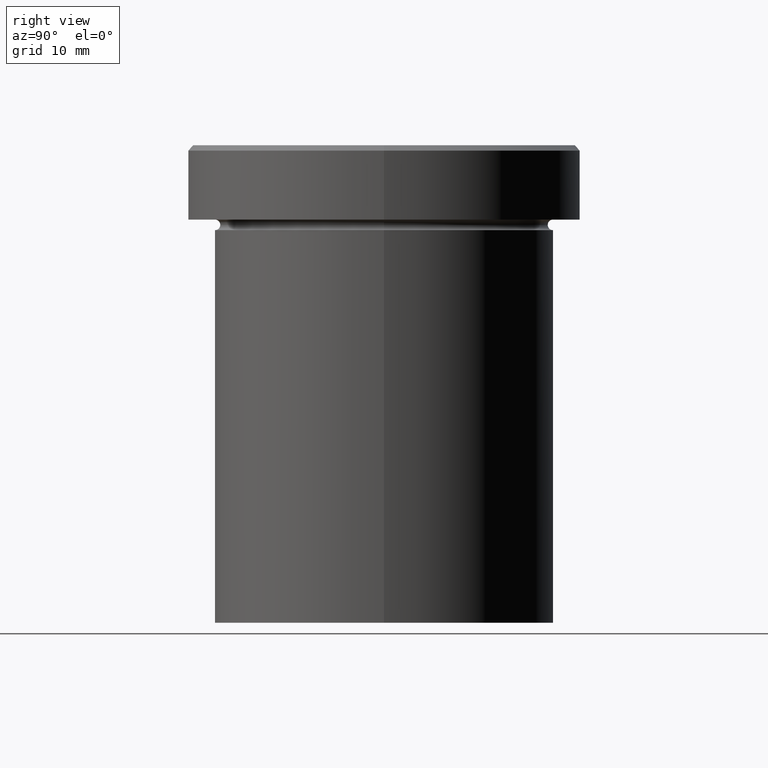
[diagram: clean part render]
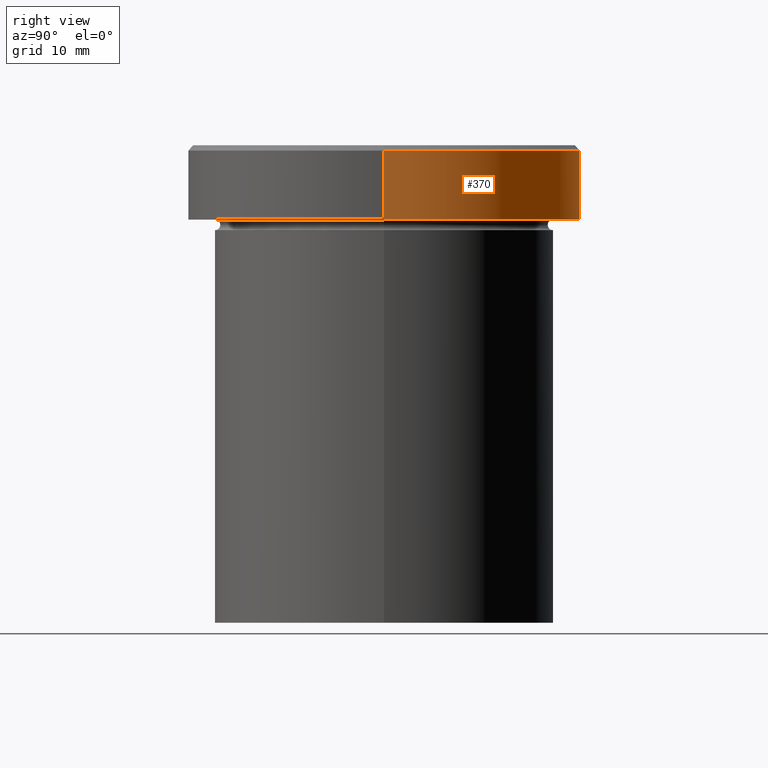
[diagram: same view with one face highlighted and labeled with its STEP entity id]
A machine part, right view. The second image highlights one B-rep face of the part: STEP entity #370.
In plain terms, the highlighted cylindrical surface (partial cylindrical patch) has radius 18.5 mm, axis along (-0, -0, 1).
Its self-contained STEP definition (entity closure, byte-faithful):
#9 = DIRECTION ( 'NONE',  ( 1.000000000000000000, 0.000000000000000000, 0.000000000000000000 ) ) ;
#11 = AXIS2_PLACEMENT_3D ( 'NONE', #155, #395, #126 ) ;
#18 = CYLINDRICAL_SURFACE ( 'NONE', #304, 18.50000000000000000 ) ;
#26 = VERTEX_POINT ( 'NONE', #151 ) ;
#31 = EDGE_LOOP ( 'NONE', ( #187, #266, #70, #334 ) ) ;
#39 = CARTESIAN_POINT ( 'NONE',  ( 0.000000000000000000, 0.000000000000000000, -6.999999999999998224 ) ) ;
#44 = LINE ( 'NONE', #228, #50 ) ;
#49 = FACE_OUTER_BOUND ( 'NONE', #31, .T. ) ;
#50 = VECTOR ( 'NONE', #108, 1000.000000000000000 ) ;
#55 = EDGE_CURVE ( 'NONE', #135, #176, #185, .T. ) ;
#61 = VECTOR ( 'NONE', #87, 1000.000000000000000 ) ;
#70 = ORIENTED_EDGE ( 'NONE', *, *, #55, .T. ) ;
#82 = EDGE_CURVE ( 'NONE', #26, #135, #121, .T. ) ;
#87 = DIRECTION ( 'NONE',  ( -0.000000000000000000, -0.000000000000000000, 1.000000000000000000 ) ) ;
#108 = DIRECTION ( 'NONE',  ( -0.000000000000000000, -0.000000000000000000, 1.000000000000000000 ) ) ;
#121 = LINE ( 'NONE', #360, #61 ) ;
#126 = DIRECTION ( 'NONE',  ( 1.000000000000000000, 0.000000000000000000, 0.000000000000000000 ) ) ;
#135 = VERTEX_POINT ( 'NONE', #318 ) ;
#151 = CARTESIAN_POINT ( 'NONE',  ( -18.50000000000000000, 2.265596578422603396E-15, -6.999999999999998224 ) ) ;
#155 = CARTESIAN_POINT ( 'NONE',  ( 0.000000000000000000, 0.000000000000000000, -0.4999999999999865663 ) ) ;
#162 = DIRECTION ( 'NONE',  ( 1.000000000000000000, 0.000000000000000000, 0.000000000000000000 ) ) ;
#176 = VERTEX_POINT ( 'NONE', #216 ) ;
#180 = CIRCLE ( 'NONE', #319, 18.50000000000000000 ) ;
#185 = CIRCLE ( 'NONE', #11, 18.50000000000000000 ) ;
#187 = ORIENTED_EDGE ( 'NONE', *, *, #240, .T. ) ;
#196 = CARTESIAN_POINT ( 'NONE',  ( 18.50000000000000000, 0.000000000000000000, -6.999999999999998224 ) ) ;
#200 = DIRECTION ( 'NONE',  ( -0.000000000000000000, -0.000000000000000000, 1.000000000000000000 ) ) ;
#216 = CARTESIAN_POINT ( 'NONE',  ( 18.50000000000000000, 0.000000000000000000, -0.4999999999999865663 ) ) ;
#228 = CARTESIAN_POINT ( 'NONE',  ( 18.50000000000000000, 0.000000000000000000, 0.000000000000000000 ) ) ;
#240 = EDGE_CURVE ( 'NONE', #257, #26, #180, .T. ) ;
#257 = VERTEX_POINT ( 'NONE', #196 ) ;
#263 = EDGE_CURVE ( 'NONE', #257, #176, #44, .T. ) ;
#266 = ORIENTED_EDGE ( 'NONE', *, *, #82, .T. ) ;
#280 = DIRECTION ( 'NONE',  ( -0.000000000000000000, -0.000000000000000000, 1.000000000000000000 ) ) ;
#304 = AXIS2_PLACEMENT_3D ( 'NONE', #347, #200, #9 ) ;
#318 = CARTESIAN_POINT ( 'NONE',  ( -18.50000000000000000, 2.265596578422603396E-15, -0.4999999999999865663 ) ) ;
#319 = AXIS2_PLACEMENT_3D ( 'NONE', #39, #280, #162 ) ;
#334 = ORIENTED_EDGE ( 'NONE', *, *, #263, .F. ) ;
#347 = CARTESIAN_POINT ( 'NONE',  ( 0.000000000000000000, 0.000000000000000000, 0.000000000000000000 ) ) ;
#360 = CARTESIAN_POINT ( 'NONE',  ( -18.50000000000000000, 2.265596578422603396E-15, 0.000000000000000000 ) ) ;
#370 = ADVANCED_FACE ( 'NONE', ( #49 ), #18, .T. ) ;
#395 = DIRECTION ( 'NONE',  ( 0.000000000000000000, 0.000000000000000000, -1.000000000000000000 ) ) ;